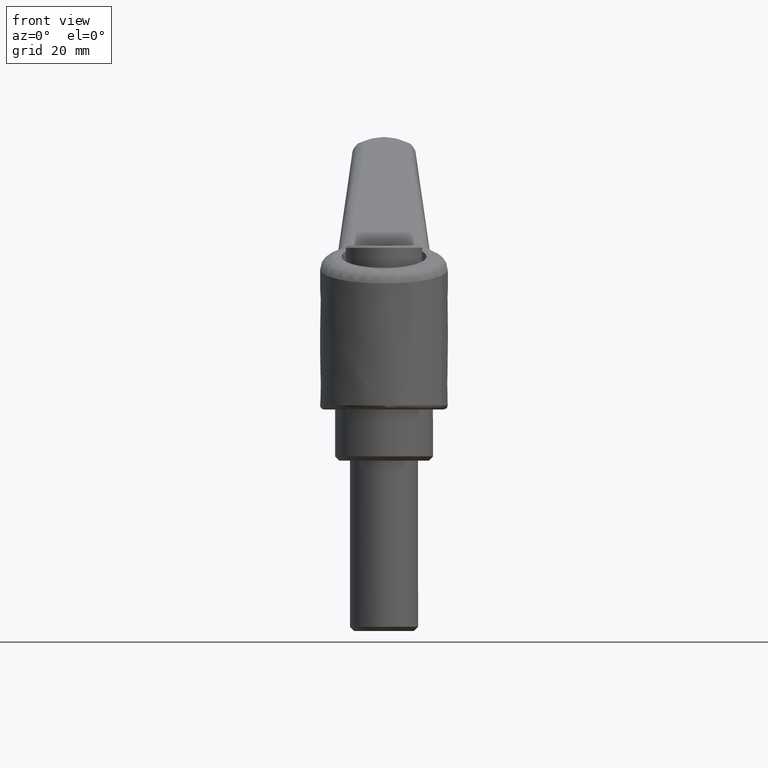
[diagram: clean part render]
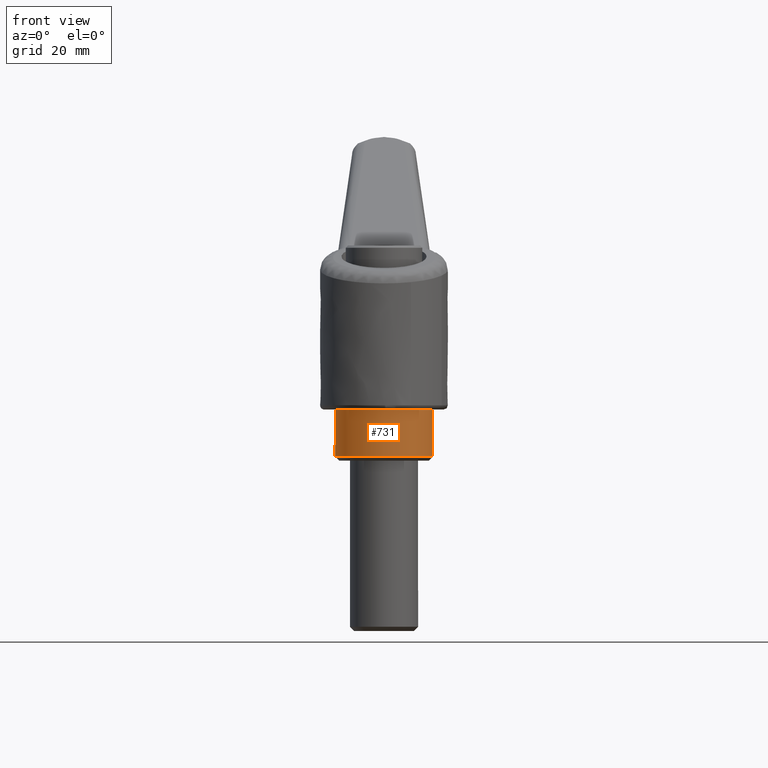
[diagram: same view with one face highlighted and labeled with its STEP entity id]
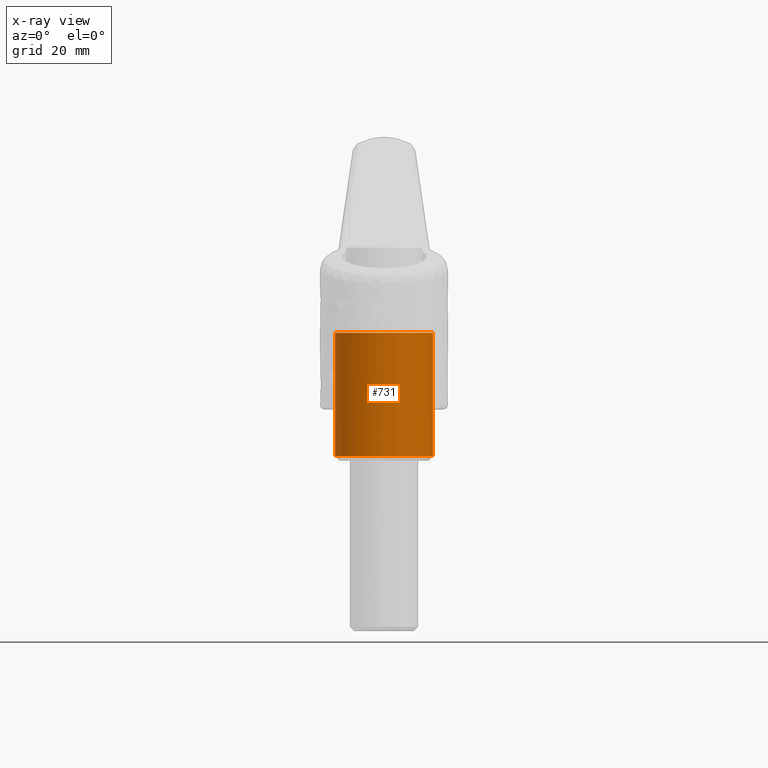
[diagram: x-ray of the same camera — body ghosted, the highlighted face saturated]
A machine part, front view. The second image highlights one B-rep face of the part: STEP entity #731.
The next image is the same camera in x-ray: the body ghosted, the highlighted face saturated — about 0% of this face is hidden behind the body in this view.
In plain terms, the highlighted face is a freeform B-spline surface patch.
Its self-contained STEP definition (entity closure, byte-faithful):
#278=CARTESIAN_POINT('',(-0.757877252156576,11.474999872410120,1.000000000049945));
#279=VERTEX_POINT('',#278);
#280=CARTESIAN_POINT('',(-11.500000000000000,0.0,1.0));
#281=VERTEX_POINT('',#280);
#282=CARTESIAN_POINT('',(-0.757877252156576,11.474999872410116,1.000000000049945));
#283=CARTESIAN_POINT('',(-11.500000000000000,10.765526184775005,1.0));
#284=CARTESIAN_POINT('',(-11.500000000000000,0.0,1.0));
#292=(BOUNDED_CURVE()B_SPLINE_CURVE(2,(#282,#283,#284),.UNSPECIFIED.,.F.,.U.)B_SPLINE_CURVE_WITH_KNOTS((3,3),(0.261505472938045,0.500000000000000),.UNSPECIFIED.)CURVE()GEOMETRIC_REPRESENTATION_ITEM()RATIONAL_B_SPLINE_CURVE((0.974281704158415,0.720586281197728,1.0))REPRESENTATION_ITEM(''));
#293=EDGE_CURVE('',#279,#281,#292,.T.);
#341=CARTESIAN_POINT('',(-0.902279601011871,-11.464549337919820,1.000000000000001));
#342=VERTEX_POINT('',#341);
#358=CARTESIAN_POINT('',(-11.500000000000000,0.0,1.0));
#359=CARTESIAN_POINT('',(-11.499999999999998,-10.630490653805932,1.0));
#360=CARTESIAN_POINT('',(-0.902279601011871,-11.464549337919827,1.000000000000001));
#368=(BOUNDED_CURVE()B_SPLINE_CURVE(2,(#358,#359,#360),.UNSPECIFIED.,.F.,.U.)B_SPLINE_CURVE_WITH_KNOTS((3,3),(0.500000000000000,0.736331300628532),.UNSPECIFIED.)CURVE()GEOMETRIC_REPRESENTATION_ITEM()RATIONAL_B_SPLINE_CURVE((1.0,0.723120658610159,0.969723356162977))REPRESENTATION_ITEM(''));
#369=EDGE_CURVE('',#281,#342,#368,.T.);
#396=CARTESIAN_POINT('',(0.902279601011869,11.464549337919820,1.000000000000001));
#397=VERTEX_POINT('',#396);
#398=CARTESIAN_POINT('',(0.902279601011869,11.464549337919827,1.000000000000001));
#399=CARTESIAN_POINT('',(0.451836230730507,11.499999999999998,1.0));
#400=CARTESIAN_POINT('',(0.0,11.500000000000000,1.0));
#401=CARTESIAN_POINT('',(-0.379350966377028,11.499999999999998,1.0));
#402=CARTESIAN_POINT('',(-0.757877252156576,11.474999872410114,1.000000000049945));
#410=(BOUNDED_CURVE()B_SPLINE_CURVE(2,(#398,#399,#400,#401,#402),.UNSPECIFIED.,.F.,.U.)B_SPLINE_CURVE_WITH_KNOTS((3,2,3),(0.236331300628531,0.250000000000000,0.261505472938045),.UNSPECIFIED.)CURVE()GEOMETRIC_REPRESENTATION_ITEM()RATIONAL_B_SPLINE_CURVE((0.969723356162975,0.983986122576388,1.0,0.986520499988819,0.974281704158415))REPRESENTATION_ITEM(''));
#411=EDGE_CURVE('',#397,#279,#410,.T.);
#628=CARTESIAN_POINT('',(0.902279601011871,11.464549337919820,30.0));
#629=VERTEX_POINT('',#628);
#643=CARTESIAN_POINT('',(-0.902279601011868,-11.464549337919820,30.0));
#644=VERTEX_POINT('',#643);
#660=CARTESIAN_POINT('',(-0.902279601011868,-11.464549337919820,30.0));
#661=CARTESIAN_POINT('',(-0.902279601011871,-11.464549337919820,1.000000000000001));
#662=QUASI_UNIFORM_CURVE('',1,(#660,#661),.UNSPECIFIED.,.F.,.U.);
#663=EDGE_CURVE('',#644,#342,#662,.T.);
#668=CARTESIAN_POINT('',(0.902279601011871,11.464549337919820,30.0));
#669=CARTESIAN_POINT('',(0.902279601011869,11.464549337919820,1.000000000000001));
#670=QUASI_UNIFORM_CURVE('',1,(#668,#669),.UNSPECIFIED.,.F.,.U.);
#671=EDGE_CURVE('',#629,#397,#670,.T.);
#676=CARTESIAN_POINT('',(-0.902279600870224,-11.464549337930970,30.725000000000009));
#677=CARTESIAN_POINT('',(-12.366828938801191,-10.562269737060745,30.725000000000009));
#678=CARTESIAN_POINT('',(-11.464549337930970,0.902279600870224,30.725000000000009));
#679=CARTESIAN_POINT('',(-10.562269737060745,12.366828938801191,30.725000000000009));
#680=CARTESIAN_POINT('',(0.902279600870224,11.464549337930970,30.725000000000009));
#681=CARTESIAN_POINT('',(-0.902279600870224,-11.464549337930970,0.256875000000001));
#682=CARTESIAN_POINT('',(-12.366828938801191,-10.562269737060745,0.256875000000001));
#683=CARTESIAN_POINT('',(-11.464549337930970,0.902279600870224,0.256875000000001));
#684=CARTESIAN_POINT('',(-10.562269737060745,12.366828938801191,0.256875000000001));
#685=CARTESIAN_POINT('',(0.902279600870224,11.464549337930970,0.256875000000001));
#693=(BOUNDED_SURFACE()B_SPLINE_SURFACE(2,1,((#676,#681),(#677,#682),(#678,#683),(#679,#684),(#680,#685)),.UNSPECIFIED.,.F.,.F.,.U.)B_SPLINE_SURFACE_WITH_KNOTS((3,2,3),(2,2),(0.0,19.053823869162368,38.107647738324737),(0.0,30.468125000000011),.UNSPECIFIED.)GEOMETRIC_REPRESENTATION_ITEM()RATIONAL_B_SPLINE_SURFACE(((1.0,1.0),(0.707106781186548,0.707106781186548),(1.0,1.0),(0.707106781186548,0.707106781186548),(1.0,1.0)))REPRESENTATION_ITEM('')SURFACE());
#694=CARTESIAN_POINT('',(-11.500000000000000,0.0,30.0));
#695=VERTEX_POINT('',#694);
#696=CARTESIAN_POINT('',(0.902279601011871,11.464549337919818,30.0));
#697=CARTESIAN_POINT('',(0.451836230730509,11.500000000000000,30.000000000000004));
#698=CARTESIAN_POINT('',(0.0,11.500000000000000,30.0));
#699=CARTESIAN_POINT('',(-11.500000000000000,11.500000000000000,30.000000000000004));
#700=CARTESIAN_POINT('',(-11.500000000000000,0.0,30.0));
#708=(BOUNDED_CURVE()B_SPLINE_CURVE(2,(#696,#697,#698,#699,#700),.UNSPECIFIED.,.F.,.U.)B_SPLINE_CURVE_WITH_KNOTS((3,2,3),(0.736331300628531,0.750000000000000,1.0),.UNSPECIFIED.)CURVE()GEOMETRIC_REPRESENTATION_ITEM()RATIONAL_B_SPLINE_CURVE((0.969723356162975,0.983986122576388,1.0,0.707106781186548,1.0))REPRESENTATION_ITEM(''));
#709=EDGE_CURVE('',#629,#695,#708,.T.);
#710=ORIENTED_EDGE('',*,*,#709,.F.);
#711=ORIENTED_EDGE('',*,*,#671,.T.);
#712=ORIENTED_EDGE('',*,*,#411,.T.);
#713=ORIENTED_EDGE('',*,*,#293,.T.);
#714=ORIENTED_EDGE('',*,*,#369,.T.);
#715=ORIENTED_EDGE('',*,*,#663,.F.);
#716=CARTESIAN_POINT('',(-11.500000000000000,0.0,30.0));
#717=CARTESIAN_POINT('',(-11.500000000000000,-10.630490653805888,29.999999999999993));
#718=CARTESIAN_POINT('',(-0.902279601011868,-11.464549337919824,30.0));
#726=(BOUNDED_CURVE()B_SPLINE_CURVE(2,(#716,#717,#718),.UNSPECIFIED.,.F.,.U.)B_SPLINE_CURVE_WITH_KNOTS((3,3),(0.0,0.236331300628531),.UNSPECIFIED.)CURVE()GEOMETRIC_REPRESENTATION_ITEM()RATIONAL_B_SPLINE_CURVE((1.0,0.723120658610160,0.969723356162976))REPRESENTATION_ITEM(''));
#727=EDGE_CURVE('',#695,#644,#726,.T.);
#728=ORIENTED_EDGE('',*,*,#727,.F.);
#729=EDGE_LOOP('',(#710,#711,#712,#713,#714,#715,#728));
#730=FACE_OUTER_BOUND('',#729,.T.);
#731=ADVANCED_FACE('',(#730),#693,.T.);